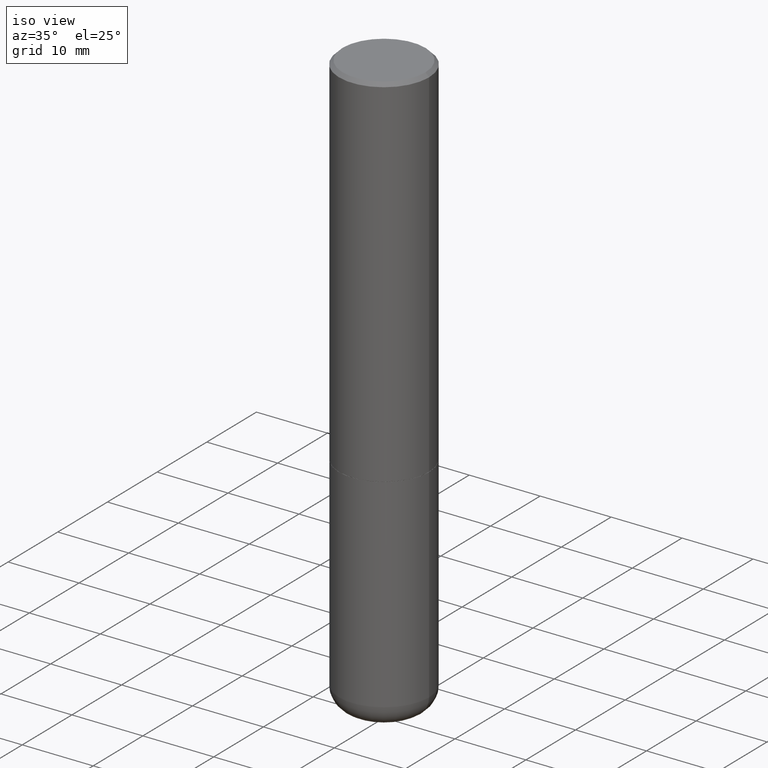
[diagram: clean part render]
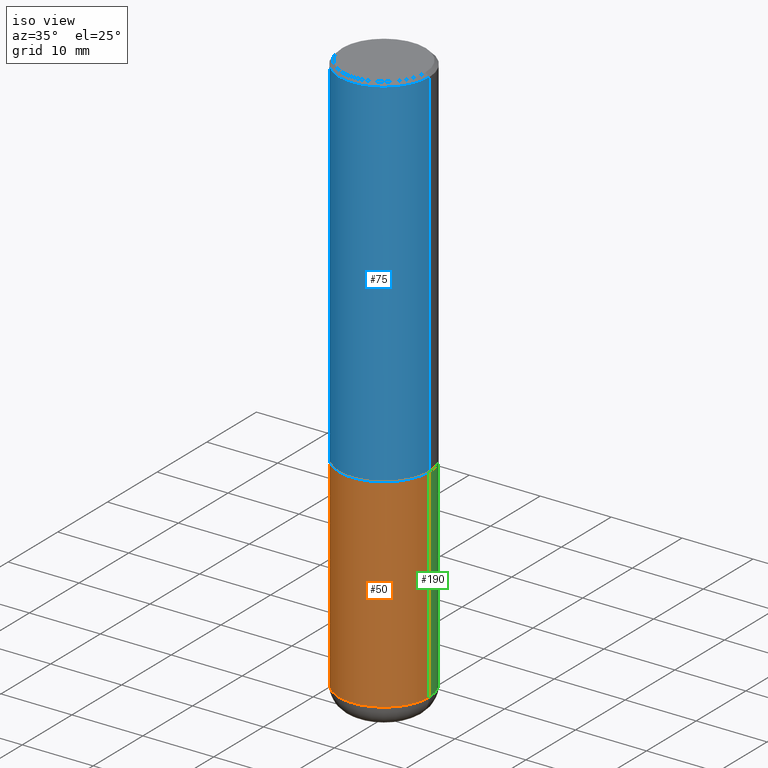
[diagram: same view with three faces highlighted in distinct colors, each labeled with its STEP entity id]
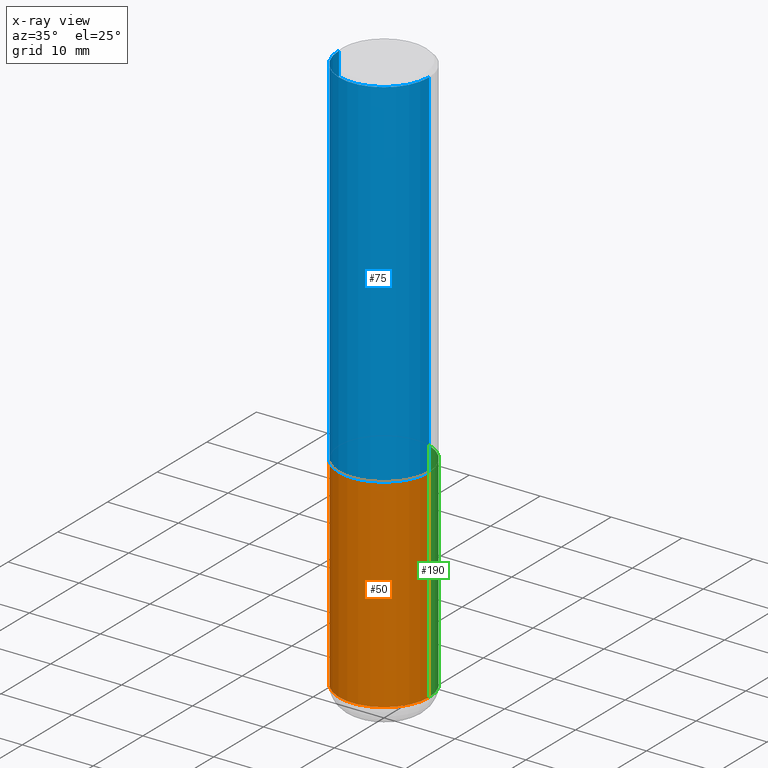
[diagram: x-ray of the same camera — body ghosted, the three highlighted faces saturated]
A machine part, iso view with three faces highlighted in distinct colors.
The next image is the same camera in x-ray (body ghosted, the three faces saturated) — at least one of them is partly hidden behind the body in this view.
Their STEP definitions:

[orange] entity #50 — the highlighted cylindrical surface (partial cylindrical patch) has radius 6.35 mm, axis along (-0, 0, 1).
#1 = VERTEX_POINT ( 'NONE', #129 ) ;
#7 = CARTESIAN_POINT ( 'NONE',  ( 4.890937612370273194E-29, -6.982962677686291165E-15, -2.000000000000000000 ) ) ;
#10 = CYLINDRICAL_SURFACE ( 'NONE', #299, 0.2499999999999995559 ) ;
#30 = EDGE_CURVE ( 'NONE', #160, #1, #87, .T. ) ;
#38 = DIRECTION ( 'NONE',  ( -2.445468806185136597E-29, 3.491481338843145583E-15, 1.000000000000000000 ) ) ;
#50 = ADVANCED_FACE ( 'NONE', ( #52 ), #10, .T. ) ;
#52 = FACE_OUTER_BOUND ( 'NONE', #305, .T. ) ;
#74 = ORIENTED_EDGE ( 'NONE', *, *, #159, .T. ) ;
#87 = CIRCLE ( 'NONE', #208, 0.2499999999999996669 ) ;
#88 = VECTOR ( 'NONE', #284, 39.37007874015748143 ) ;
#116 = AXIS2_PLACEMENT_3D ( 'NONE', #173, #476, #250 ) ;
#122 = DIRECTION ( 'NONE',  ( 1.000000000000000000, -6.982962677686268288E-15, 0.000000000000000000 ) ) ;
#123 = CARTESIAN_POINT ( 'NONE',  ( -0.2499999999999994449, -7.179300771427075001E-15, -3.130004569232299527 ) ) ;
#129 = CARTESIAN_POINT ( 'NONE',  ( 0.2499999999999996669, -8.728703347107855476E-15, -2.000000000000000000 ) ) ;
#150 = CARTESIAN_POINT ( 'NONE',  ( 0.2499999999999994449, -1.267409321338991461E-14, -3.130004569232299527 ) ) ;
#159 = EDGE_CURVE ( 'NONE', #170, #436, #256, .T. ) ;
#160 = VERTEX_POINT ( 'NONE', #364 ) ;
#170 = VERTEX_POINT ( 'NONE', #123 ) ;
#172 = CARTESIAN_POINT ( 'NONE',  ( -0.2499999999999995559, 1.776356839400247309E-15, -1.229733772563724203E-29 ) ) ;
#173 = CARTESIAN_POINT ( 'NONE',  ( 7.654328537274535481E-29, -1.092835254396835267E-14, -3.130004569232299527 ) ) ;
#205 = ORIENTED_EDGE ( 'NONE', *, *, #30, .F. ) ;
#206 = LINE ( 'NONE', #172, #266 ) ;
#208 = AXIS2_PLACEMENT_3D ( 'NONE', #7, #462, #122 ) ;
#209 = ORIENTED_EDGE ( 'NONE', *, *, #226, .F. ) ;
#226 = EDGE_CURVE ( 'NONE', #170, #160, #206, .T. ) ;
#227 = DIRECTION ( 'NONE',  ( 1.000000000000000000, -6.982962677686266711E-15, 4.876176775795935232E-29 ) ) ;
#250 = DIRECTION ( 'NONE',  ( 1.000000000000000000, -6.982962677686263555E-15, 0.000000000000000000 ) ) ;
#253 = CARTESIAN_POINT ( 'NONE',  ( 0.2499999999999995559, -1.745740669421563522E-15, 1.219044193948981706E-29 ) ) ;
#256 = CIRCLE ( 'NONE', #116, 0.2499999999999994449 ) ;
#266 = VECTOR ( 'NONE', #459, 39.37007874015748143 ) ;
#267 = CARTESIAN_POINT ( 'NONE',  ( 0.000000000000000000, 0.000000000000000000, 0.000000000000000000 ) ) ;
#284 = DIRECTION ( 'NONE',  ( -2.445468806185136877E-29, 3.491481338843145188E-15, 1.000000000000000000 ) ) ;
#299 = AXIS2_PLACEMENT_3D ( 'NONE', #267, #38, #227 ) ;
#305 = EDGE_LOOP ( 'NONE', ( #209, #74, #422, #205 ) ) ;
#334 = EDGE_CURVE ( 'NONE', #436, #1, #448, .T. ) ;
#364 = CARTESIAN_POINT ( 'NONE',  ( -0.2499999999999996669, -7.179300771427075001E-15, -2.000000000000000000 ) ) ;
#422 = ORIENTED_EDGE ( 'NONE', *, *, #334, .T. ) ;
#436 = VERTEX_POINT ( 'NONE', #150 ) ;
#448 = LINE ( 'NONE', #253, #88 ) ;
#459 = DIRECTION ( 'NONE',  ( -2.445468806185136877E-29, 3.491481338843145188E-15, 1.000000000000000000 ) ) ;
#462 = DIRECTION ( 'NONE',  ( -2.445468806185136597E-29, 3.491481338843145583E-15, 1.000000000000000000 ) ) ;
#476 = DIRECTION ( 'NONE',  ( -2.445468806185136597E-29, 3.491481338843145583E-15, 1.000000000000000000 ) ) ;

[blue] entity #75 — the highlighted cylindrical surface (partial cylindrical patch) has radius 6.35 mm, axis along (-0, 0, 1).
#2 = ORIENTED_EDGE ( 'NONE', *, *, #184, .F. ) ;
#12 = CARTESIAN_POINT ( 'NONE',  ( 4.888492143564087591E-29, -6.979471196347447369E-15, -1.998999999999999888 ) ) ;
#43 = CARTESIAN_POINT ( 'NONE',  ( -0.2499999999999996114, -1.748293572161906447E-15, -1.998999999999999888 ) ) ;
#44 = DIRECTION ( 'NONE',  ( -2.445468806185136597E-29, 3.491481338843145583E-15, 1.000000000000000000 ) ) ;
#58 = EDGE_CURVE ( 'NONE', #456, #85, #145, .T. ) ;
#59 = AXIS2_PLACEMENT_3D ( 'NONE', #12, #189, #318 ) ;
#75 = ADVANCED_FACE ( 'NONE', ( #473 ), #310, .T. ) ;
#85 = VERTEX_POINT ( 'NONE', #196 ) ;
#110 = CIRCLE ( 'NONE', #311, 0.2499999999999994171 ) ;
#145 = CIRCLE ( 'NONE', #59, 0.2499999999999996669 ) ;
#155 = DIRECTION ( 'NONE',  ( -2.445468806185136877E-29, 3.491481338843145188E-15, 1.000000000000000000 ) ) ;
#184 = EDGE_CURVE ( 'NONE', #456, #416, #273, .T. ) ;
#189 = DIRECTION ( 'NONE',  ( -2.445468806185136597E-29, 3.491481338843145583E-15, 1.000000000000000000 ) ) ;
#196 = CARTESIAN_POINT ( 'NONE',  ( 0.2499999999999996669, -8.725211865769010891E-15, -1.998999999999999888 ) ) ;
#220 = VERTEX_POINT ( 'NONE', #423 ) ;
#230 = ORIENTED_EDGE ( 'NONE', *, *, #447, .T. ) ;
#233 = DIRECTION ( 'NONE',  ( -2.445468806185136877E-29, 3.491481338843145188E-15, 1.000000000000000000 ) ) ;
#270 = CARTESIAN_POINT ( 'NONE',  ( 0.2499999999999995282, -1.745740669421563325E-15, 1.219044193948981566E-29 ) ) ;
#273 = LINE ( 'NONE', #319, #419 ) ;
#290 = CARTESIAN_POINT ( 'NONE',  ( -0.2499999999999994171, 1.675911042644699238E-15, -0.02000000000000011838 ) ) ;
#308 = LINE ( 'NONE', #270, #420 ) ;
#310 = CYLINDRICAL_SURFACE ( 'NONE', #357, 0.2499999999999995282 ) ;
#311 = AXIS2_PLACEMENT_3D ( 'NONE', #452, #484, #444 ) ;
#318 = DIRECTION ( 'NONE',  ( 1.000000000000000000, -6.982962677686264344E-15, 0.000000000000000000 ) ) ;
#319 = CARTESIAN_POINT ( 'NONE',  ( -0.2499999999999995282, 1.776356839400247112E-15, -1.229733772563724063E-29 ) ) ;
#333 = EDGE_CURVE ( 'NONE', #416, #220, #110, .T. ) ;
#345 = ORIENTED_EDGE ( 'NONE', *, *, #58, .T. ) ;
#357 = AXIS2_PLACEMENT_3D ( 'NONE', #427, #44, #437 ) ;
#416 = VERTEX_POINT ( 'NONE', #290 ) ;
#419 = VECTOR ( 'NONE', #155, 39.37007874015748143 ) ;
#420 = VECTOR ( 'NONE', #233, 39.37007874015748143 ) ;
#423 = CARTESIAN_POINT ( 'NONE',  ( 0.2499999999999994171, -1.784954126219742244E-15, -0.02000000000000011838 ) ) ;
#427 = CARTESIAN_POINT ( 'NONE',  ( 0.000000000000000000, 0.000000000000000000, 0.000000000000000000 ) ) ;
#437 = DIRECTION ( 'NONE',  ( 1.000000000000000000, -6.982962677686266711E-15, 4.876176775795935232E-29 ) ) ;
#440 = EDGE_LOOP ( 'NONE', ( #2, #345, #230, #461 ) ) ;
#444 = DIRECTION ( 'NONE',  ( 1.000000000000000000, -6.982962677686266711E-15, 0.000000000000000000 ) ) ;
#447 = EDGE_CURVE ( 'NONE', #85, #220, #308, .T. ) ;
#452 = CARTESIAN_POINT ( 'NONE',  ( 4.890937612370302936E-31, -6.982962677686332285E-17, -0.02000000000000011838 ) ) ;
#456 = VERTEX_POINT ( 'NONE', #43 ) ;
#461 = ORIENTED_EDGE ( 'NONE', *, *, #333, .F. ) ;
#473 = FACE_OUTER_BOUND ( 'NONE', #440, .T. ) ;
#484 = DIRECTION ( 'NONE',  ( -2.445468806185136597E-29, 3.491481338843145583E-15, 1.000000000000000000 ) ) ;

[green] entity #190 — the highlighted cylindrical surface (partial cylindrical patch) has radius 6.35 mm, axis along (-0, 0, 1).
#1 = VERTEX_POINT ( 'NONE', #129 ) ;
#5 = CIRCLE ( 'NONE', #70, 0.2499999999999996669 ) ;
#36 = AXIS2_PLACEMENT_3D ( 'NONE', #438, #343, #235 ) ;
#45 = FACE_OUTER_BOUND ( 'NONE', #48, .T. ) ;
#48 = EDGE_LOOP ( 'NONE', ( #84, #242, #321, #166 ) ) ;
#70 = AXIS2_PLACEMENT_3D ( 'NONE', #97, #330, #109 ) ;
#83 = CYLINDRICAL_SURFACE ( 'NONE', #36, 0.2499999999999995559 ) ;
#84 = ORIENTED_EDGE ( 'NONE', *, *, #332, .T. ) ;
#88 = VECTOR ( 'NONE', #284, 39.37007874015748143 ) ;
#97 = CARTESIAN_POINT ( 'NONE',  ( 4.890937612370273194E-29, -6.982962677686291165E-15, -2.000000000000000000 ) ) ;
#104 = CARTESIAN_POINT ( 'NONE',  ( 7.654328537274535481E-29, -1.092835254396835267E-14, -3.130004569232299527 ) ) ;
#109 = DIRECTION ( 'NONE',  ( 1.000000000000000000, -6.982962677686268288E-15, 0.000000000000000000 ) ) ;
#123 = CARTESIAN_POINT ( 'NONE',  ( -0.2499999999999994449, -7.179300771427075001E-15, -3.130004569232299527 ) ) ;
#129 = CARTESIAN_POINT ( 'NONE',  ( 0.2499999999999996669, -8.728703347107855476E-15, -2.000000000000000000 ) ) ;
#142 = DIRECTION ( 'NONE',  ( 1.000000000000000000, -6.982962677686263555E-15, 0.000000000000000000 ) ) ;
#150 = CARTESIAN_POINT ( 'NONE',  ( 0.2499999999999994449, -1.267409321338991461E-14, -3.130004569232299527 ) ) ;
#160 = VERTEX_POINT ( 'NONE', #364 ) ;
#166 = ORIENTED_EDGE ( 'NONE', *, *, #334, .F. ) ;
#170 = VERTEX_POINT ( 'NONE', #123 ) ;
#172 = CARTESIAN_POINT ( 'NONE',  ( -0.2499999999999995559, 1.776356839400247309E-15, -1.229733772563724203E-29 ) ) ;
#190 = ADVANCED_FACE ( 'NONE', ( #45 ), #83, .T. ) ;
#206 = LINE ( 'NONE', #172, #266 ) ;
#226 = EDGE_CURVE ( 'NONE', #170, #160, #206, .T. ) ;
#235 = DIRECTION ( 'NONE',  ( 1.000000000000000000, -6.982962677686266711E-15, 4.876176775795935232E-29 ) ) ;
#242 = ORIENTED_EDGE ( 'NONE', *, *, #226, .T. ) ;
#253 = CARTESIAN_POINT ( 'NONE',  ( 0.2499999999999995559, -1.745740669421563522E-15, 1.219044193948981706E-29 ) ) ;
#266 = VECTOR ( 'NONE', #459, 39.37007874015748143 ) ;
#284 = DIRECTION ( 'NONE',  ( -2.445468806185136877E-29, 3.491481338843145188E-15, 1.000000000000000000 ) ) ;
#288 = CIRCLE ( 'NONE', #327, 0.2499999999999994449 ) ;
#321 = ORIENTED_EDGE ( 'NONE', *, *, #396, .F. ) ;
#327 = AXIS2_PLACEMENT_3D ( 'NONE', #104, #477, #142 ) ;
#330 = DIRECTION ( 'NONE',  ( -2.445468806185136597E-29, 3.491481338843145583E-15, 1.000000000000000000 ) ) ;
#332 = EDGE_CURVE ( 'NONE', #436, #170, #288, .T. ) ;
#334 = EDGE_CURVE ( 'NONE', #436, #1, #448, .T. ) ;
#343 = DIRECTION ( 'NONE',  ( -2.445468806185136597E-29, 3.491481338843145583E-15, 1.000000000000000000 ) ) ;
#364 = CARTESIAN_POINT ( 'NONE',  ( -0.2499999999999996669, -7.179300771427075001E-15, -2.000000000000000000 ) ) ;
#396 = EDGE_CURVE ( 'NONE', #1, #160, #5, .T. ) ;
#436 = VERTEX_POINT ( 'NONE', #150 ) ;
#438 = CARTESIAN_POINT ( 'NONE',  ( 0.000000000000000000, 0.000000000000000000, 0.000000000000000000 ) ) ;
#448 = LINE ( 'NONE', #253, #88 ) ;
#459 = DIRECTION ( 'NONE',  ( -2.445468806185136877E-29, 3.491481338843145188E-15, 1.000000000000000000 ) ) ;
#477 = DIRECTION ( 'NONE',  ( -2.445468806185136597E-29, 3.491481338843145583E-15, 1.000000000000000000 ) ) ;